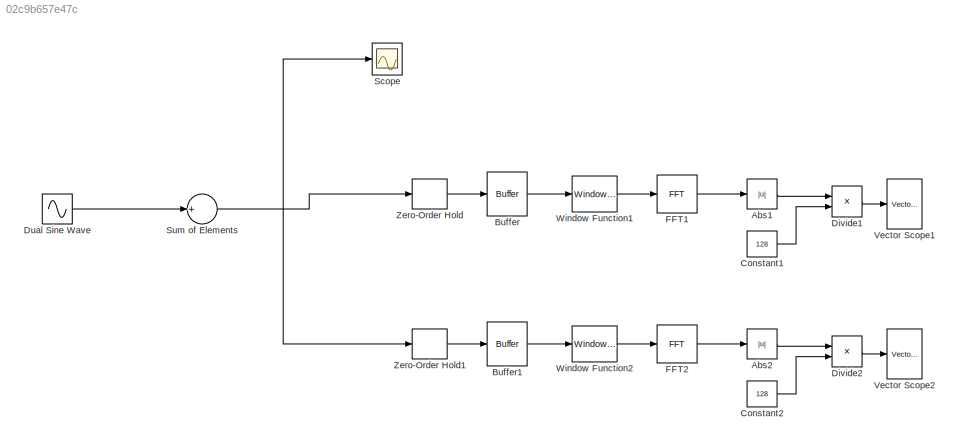
MODEL slx_02c9b657e47c
KIND model
BLOCK [Abs] Abs1
  SaturateOnIntegerOverflow = off
BLOCK [Abs] Abs2
  SaturateOnIntegerOverflow = off
BLOCK [Buffer] Buffer
  N = 128
  TreatMby1Signals = One channel
BLOCK [Buffer] Buffer1
  N = 128
  TreatMby1Signals = One channel
BLOCK [Constant] Constant1
  Value = 128
BLOCK [Constant] Constant2
  Value = 128
BLOCK [Product] Divide1
  InputSameDT = off
  Inputs = */
  OutDataTypeStr = Inherit: Inherit via internal rule
  Ports = [2, 1]
  RndMeth = Floor
  SaturateOnIntegerOverflow = off
BLOCK [Product] Divide2
  InputSameDT = off
  Inputs = */
  OutDataTypeStr = Inherit: Inherit via internal rule
  Ports = [2, 1]
  RndMeth = Floor
  SaturateOnIntegerOverflow = off
BLOCK [Sin] Dual Sine Wave
  Amplitude = [1, 1]
  Bias = [0, 0]
  Frequency = 2*pi*[0.9, 1.1]*1e3
  Phase = [0, 0]
  Ports = [0, 1]
  SampleTime = 0
BLOCK [Reference] FFT1  REF=dspxfrm3/FFT
  BitRevOrder = off
  CompMethod = Table lookup
  FFTImplementation = Auto
  FFTLength = 64
  InheritFFTLength = on
  LockScale = off
  Ports = [1, 1]
  RowConvenienceOn = on
  SkipNorm = off
  SourceBlock = dspxfrm3/FFT
  SourceType = FFT
  TableOpt = NEW
  TableOptActive = Speed
  accumDataTypeStr = Inherit: Inherit via internal rule
  accumFracLength = 30
  accumLastDataTypeStr = Inherit: Inherit via internal rule
  accumMode = Inherit via internal rule
  accumWordLength = 32
  additionalParams = off
  allowOverrides = on
  firstCoeffDataTypeStr = Inherit: Same word length as input
  firstCoeffFracLength = 15
  firstCoeffLastDataTypeStr = Inherit: Same word length as input
  firstCoeffMode = Same word length as input
  firstCoeffWordLength = 16
  outputDataTypeStr = Inherit: Inherit via internal rule
  outputFracLength = 15
  outputLastDataTypeStr = Inherit: Inherit via internal rule
  outputMax = []
  outputMin = []
  outputMode = Inherit via internal rule
  outputWordLength = 16
  overflowMode = off
  prodOutputDataTypeStr = Inherit: Inherit via internal rule
  prodOutputFracLength = 30
  prodOutputLastDataTypeStr = Inherit: Inherit via internal rule
  prodOutputMode = Inherit via internal rule
  prodOutputWordLength = 32
  roundingMode = Floor
BLOCK [Reference] FFT2  REF=dspxfrm3/FFT
  BitRevOrder = off
  CompMethod = Table lookup
  FFTImplementation = Auto
  FFTLength = 64
  InheritFFTLength = on
  LockScale = off
  Ports = [1, 1]
  RowConvenienceOn = on
  SkipNorm = off
  SourceBlock = dspxfrm3/FFT
  SourceType = FFT
  TableOpt = NEW
  TableOptActive = Speed
  accumDataTypeStr = Inherit: Inherit via internal rule
  accumFracLength = 30
  accumLastDataTypeStr = Inherit: Inherit via internal rule
  accumMode = Inherit via internal rule
  accumWordLength = 32
  additionalParams = off
  allowOverrides = on
  firstCoeffDataTypeStr = Inherit: Same word length as input
  firstCoeffFracLength = 15
  firstCoeffLastDataTypeStr = Inherit: Same word length as input
  firstCoeffMode = Same word length as input
  firstCoeffWordLength = 16
  outputDataTypeStr = Inherit: Inherit via internal rule
  outputFracLength = 15
  outputLastDataTypeStr = Inherit: Inherit via internal rule
  outputMax = []
  outputMin = []
  outputMode = Inherit via internal rule
  outputWordLength = 16
  overflowMode = off
  prodOutputDataTypeStr = Inherit: Inherit via internal rule
  prodOutputFracLength = 30
  prodOutputLastDataTypeStr = Inherit: Inherit via internal rule
  prodOutputMode = Inherit via internal rule
  prodOutputWordLength = 32
  roundingMode = Floor
BLOCK [Scope] Scope
  DataFormat = StructureWithTime
  Floating = off
  NumInputPorts = 1
  Ports = [1]
  SampleTime = 0
  ShowLegends = off
  TimeRange = 0.09052471482889736
  YMax = 1.15625
  YMin = -0.90625
BLOCK [Sum] Sum of Elements
  InputSameDT = off
  Inputs = +
  OutDataTypeStr = Inherit: Inherit via internal rule
  Ports = [1, 1]
  SaturateOnIntegerOverflow = off
BLOCK [Reference] Vector Scope1  REF=dspsnks4/Vector
Scope
  AxisGrid = on
  AxisLegend = off
  AxisProperties = off
  AxisZoom = off
  DisplayProperties = off
  Domain = Frequency
  FigPos = get(0,'defaultfigureposition')
  FrameNumber = on
  HorizSpan = 1
  InheritXIncr = on
  LineProperties = off
  Memory = off
  OpenScopeAtSimStart = on
  OpenScopeImmediately = off
  Ports = [1]
  ScopeProperties = on
  ShowPortLabels = off
  SourceBlock = dspsnks4/Vector\nScope
  SourceType = Vector Scope
  XAxisParamsVer = 6.9
  XIncr = 1
  XLabel = Time
  XLimit = Auto
  XMax = 1
  XMin = 0
  XRange = [0...Fs/2]
  XStart = 0
  XUnits = Hertz
  YLabel = Amplitude
  YMax = 1
  YMin = -100
  YUnits = dB
BLOCK [Reference] Vector Scope2  REF=dspsnks4/Vector
Scope
  AxisGrid = on
  AxisLegend = off
  AxisProperties = off
  AxisZoom = off
  DisplayProperties = off
  Domain = Frequency
  FigPos = get(0,'defaultfigureposition')
  FrameNumber = on
  HorizSpan = 1
  InheritXIncr = on
  LineProperties = off
  Memory = off
  OpenScopeAtSimStart = on
  OpenScopeImmediately = off
  Ports = [1]
  ScopeProperties = on
  ShowPortLabels = off
  SourceBlock = dspsnks4/Vector\nScope
  SourceType = Vector Scope
  XAxisParamsVer = 6.9
  XIncr = 1
  XLabel = Time
  XLimit = Auto
  XMax = 1
  XMin = 0
  XRange = [0...Fs/2]
  XStart = 0
  XUnits = Hertz
  YLabel = Amplitude
  YMax = 1
  YMin = -100
  YUnits = dB
BLOCK [Reference] Window Function1  REF=dspsigops/Window
Function
  LockScale = off
  N = 64
  OptParams = off
  Ports = [1, 1]
  RowConvenienceOn = on
  Rs = 50
  SourceBlock = dspsigops/Window\nFunction
  SourceType = Window Function
  UserParams = {'symmetric'}
  UserWindow = hamming
  additionalParams = off
  allowOverrides = on
  beta = 10
  dataType = double
  firstCoeffFracLength = 15
  firstCoeffMode = Same word length as input
  firstCoeffWordLength = 16
  fracBitsMode = Best precision
  isSigned = on
  numFracBits = 15
  numSidelobes = 4
  outputFracLength = 15
  outputMode = Same as product output
  outputWordLength = 16
  overflowMode = off
  prodOutputFracLength = 15
  prodOutputMode = Inherit via internal rule
  prodOutputWordLength = 16
  roundingMode = Floor
  sampmode = Continuous
  samptime = 1
  sidelobeLevel = -30
  udDataType = sfix(16)
  winmode = Apply window to input
  winsamp = Symmetric
  wintype = Hann
  wordLen = 16
BLOCK [Reference] Window Function2  REF=dspsigops/Window
Function
  LockScale = off
  N = 64
  OptParams = off
  Ports = [1, 1]
  RowConvenienceOn = on
  Rs = 50
  SourceBlock = dspsigops/Window\nFunction
  SourceType = Window Function
  UserParams = {'symmetric'}
  UserWindow = hamming
  additionalParams = off
  allowOverrides = on
  beta = 10
  dataType = double
  firstCoeffFracLength = 15
  firstCoeffMode = Same word length as input
  firstCoeffWordLength = 16
  fracBitsMode = Best precision
  isSigned = on
  numFracBits = 15
  numSidelobes = 4
  outputFracLength = 15
  outputMode = Same as product output
  outputWordLength = 16
  overflowMode = off
  prodOutputFracLength = 15
  prodOutputMode = Inherit via internal rule
  prodOutputWordLength = 16
  roundingMode = Floor
  sampmode = Continuous
  samptime = 1
  sidelobeLevel = -30
  udDataType = sfix(16)
  winmode = Apply window to input
  winsamp = Symmetric
  wintype = Hann
  wordLen = 16
BLOCK [ZeroOrderHold] Zero-Order Hold
  SampleTime = 5e-5
BLOCK [ZeroOrderHold] Zero-Order Hold1
  SampleTime = 0.0002
LINE Abs1:1 -> Divide1:1
LINE Abs2:1 -> Divide2:1
LINE Buffer1:1 -> Window Function2:1
LINE Buffer:1 -> Window Function1:1
LINE Constant1:1 -> Divide1:2
LINE Constant2:1 -> Divide2:2
LINE Divide1:1 -> Vector Scope1:1
LINE Divide2:1 -> Vector Scope2:1
LINE Dual Sine Wave:1 -> Sum of Elements:1
LINE FFT1:1 -> Abs1:1
LINE FFT2:1 -> Abs2:1
NET Sum of Elements:1 -> Scope:1, Zero-Order Hold1:1, Zero-Order Hold:1
LINE Window Function1:1 -> FFT1:1
LINE Window Function2:1 -> FFT2:1
LINE Zero-Order Hold1:1 -> Buffer1:1
LINE Zero-Order Hold:1 -> Buffer:1
note: NET lines group one-source signal fan-out (src -> all destinations, sorted); 1:1 wires keep LINE
